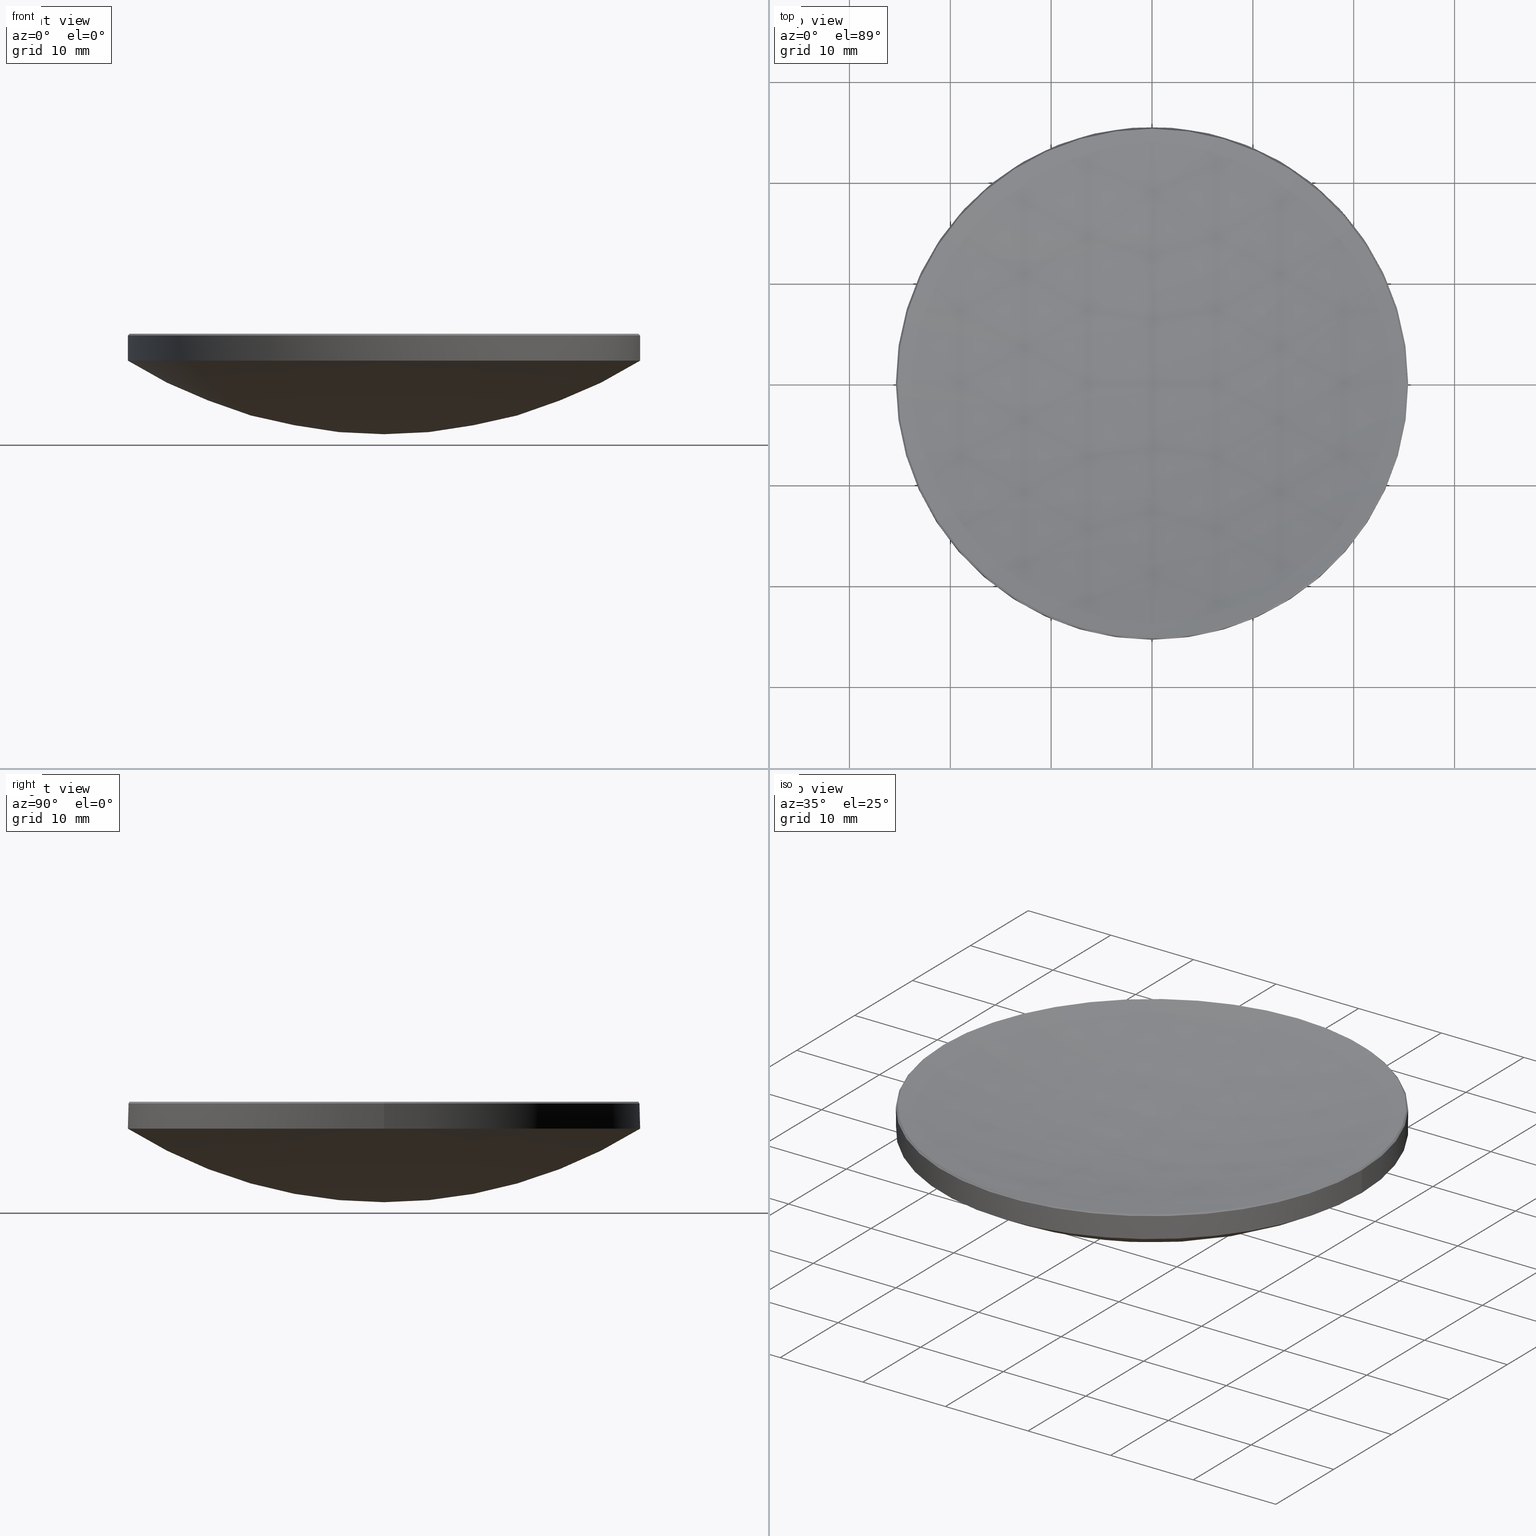
[diagram: canonical four-view strip — front | top / right | iso, engineering-drawing reading convention]
A machine part, canonical four-view strip (front | top / right | iso — engineering-drawing reading convention). The complete STEP part file that produces these views, byte-faithful:
ISO-10303-21;
HEADER;
FILE_DESCRIPTION (( 'STEP AP214' ),
    '1' );
FILE_NAME ('GLM1-050B-150.STEP',
    '2024-08-09T02:23:21',
    ( 'Windows User' ),
    ( 'P R C' ),
    'SwSTEP 2.0',
    'SolidWorks 2022',
    '' );
FILE_SCHEMA (( 'AUTOMOTIVE_DESIGN' ));
ENDSEC;

DATA;
#1 = PRODUCT_DEFINITION_SHAPE ( 'NONE', 'NONE',  #62 ) ;
#2 = CARTESIAN_POINT ( 'NONE',  ( 0.000000000000000000, 0.000000000000000000, 15.66432118436585164 ) ) ;
#3 = VECTOR ( 'NONE', #159, 1000.000000000000000 ) ;
#4 = EDGE_CURVE ( 'NONE', #138, #178, #260, .T. ) ;
#5 = CLOSED_SHELL ( 'NONE', ( #257, #67, #218, #91, #197, #127, #147, #262 ) ) ;
#6 = STYLED_ITEM ( 'NONE', ( #85 ), #89 ) ;
#7 = CARTESIAN_POINT ( 'NONE',  ( 0.000000000000000000, 0.000000000000000000, 132.2851722990535279 ) ) ;
#8 = SURFACE_STYLE_USAGE ( .BOTH. , #180 ) ;
#9 = EDGE_LOOP ( 'NONE', ( #49, #241, #60, #268, #126 ) ) ;
#10 = CIRCLE ( 'NONE', #173, 25.39999999999999503 ) ;
#11 = FILL_AREA_STYLE_COLOUR ( '', #199 ) ;
#12 = VERTEX_POINT ( 'NONE', #98 ) ;
#13 = SURFACE_STYLE_FILL_AREA ( #118 ) ;
#14 = ORIENTED_EDGE ( 'NONE', *, *, #175, .T. ) ;
#15 = DIRECTION ( 'NONE',  ( 1.000000000000000000, 0.000000000000000000, 0.000000000000000000 ) ) ;
#16 = LINE ( 'NONE', #64, #151 ) ;
#17 = ORIENTED_EDGE ( 'NONE', *, *, #276, .T. ) ;
#18 = DIRECTION ( 'NONE',  ( 0.000000000000000000, 0.000000000000000000, -1.000000000000000000 ) ) ;
#19 = VERTEX_POINT ( 'NONE', #184 ) ;
#20 = PRODUCT_DEFINITION_CONTEXT ( 'detailed design', #128, 'design' ) ;
#21 = CIRCLE ( 'NONE', #86, 47.86999999999999744 ) ;
#22 = CARTESIAN_POINT ( 'NONE',  ( 0.000000000000000000, 0.000000000000000000, 15.49999999999997158 ) ) ;
#23 = DIRECTION ( 'NONE',  ( -0.000000000000000000, -0.000000000000000000, 1.000000000000000000 ) ) ;
#24 = CIRCLE ( 'NONE', #111, 25.23567881563414517 ) ;
#25 = EDGE_CURVE ( 'NONE', #104, #279, #136, .T. ) ;
#26 =( LENGTH_UNIT ( ) NAMED_UNIT ( * ) SI_UNIT ( .MILLI., .METRE. ) );
#27 = ORIENTED_EDGE ( 'NONE', *, *, #155, .T. ) ;
#28 = CARTESIAN_POINT ( 'NONE',  ( -25.39999999999999858, 0.000000000000000000, 20.00000000000000000 ) ) ;
#29 = PRESENTATION_LAYER_ASSIGNMENT (  '', '', ( #280 ) ) ;
#30 = EDGE_CURVE ( 'NONE', #19, #12, #16, .T. ) ;
#31 = ORIENTED_EDGE ( 'NONE', *, *, #155, .F. ) ;
#32 = DIRECTION ( 'NONE',  ( 0.000000000000000000, 0.000000000000000000, -1.000000000000000000 ) ) ;
#33 = ORIENTED_EDGE ( 'NONE', *, *, #276, .F. ) ;
#34 = DIRECTION ( 'NONE',  ( -0.000000000000000000, -0.000000000000000000, -1.000000000000000000 ) ) ;
#35 = DIRECTION ( 'NONE',  ( -1.000000000000000000, 1.224646799147353207E-16, 0.000000000000000000 ) ) ;
#36 = CIRCLE ( 'NONE', #132, 25.39999999999999858 ) ;
#37 =( NAMED_UNIT ( * ) SI_UNIT ( $, .STERADIAN. ) SOLID_ANGLE_UNIT ( ) );
#38 = CARTESIAN_POINT ( 'NONE',  ( 0.000000000000000000, 0.000000000000000000, 13.00000000000000000 ) ) ;
#39 = DIRECTION ( 'NONE',  ( -0.000000000000000000, -0.000000000000000000, 1.000000000000000000 ) ) ;
#40 = FACE_OUTER_BOUND ( 'NONE', #116, .T. ) ;
#41 = PRODUCT_RELATED_PRODUCT_CATEGORY ( 'part', '', ( #44 ) ) ;
#42 = CARTESIAN_POINT ( 'NONE',  ( 0.000000000000000000, 0.000000000000000000, 132.2851722990535279 ) ) ;
#43 = CARTESIAN_POINT ( 'NONE',  ( 0.000000000000000000, 0.000000000000000000, 20.00000000000000000 ) ) ;
#44 = PRODUCT ( 'GLM1-050B-150', 'GLM1-050B-150', '', ( #239 ) ) ;
#45 = EDGE_CURVE ( 'NONE', #54, #104, #10, .T. ) ;
#46 = CIRCLE ( 'NONE', #179, 25.39999999999999503 ) ;
#47 = CARTESIAN_POINT ( 'NONE',  ( 0.000000000000000000, 0.000000000000000000, 0.000000000000000000 ) ) ;
#48 = EDGE_LOOP ( 'NONE', ( #217, #143, #119, #223, #31 ) ) ;
#49 = ORIENTED_EDGE ( 'NONE', *, *, #134, .T. ) ;
#50 = VERTEX_POINT ( 'NONE', #75 ) ;
#51 = EDGE_CURVE ( 'NONE', #247, #54, #21, .T. ) ;
#52 = CARTESIAN_POINT ( 'NONE',  ( 0.000000000000000000, 0.000000000000000000, 20.00000000000000000 ) ) ;
#53 = AXIS2_PLACEMENT_3D ( 'NONE', #7, #139, #56 ) ;
#54 = VERTEX_POINT ( 'NONE', #189 ) ;
#55 = DIRECTION ( 'NONE',  ( -1.224646799147353207E-16, -1.000000000000000000, 0.000000000000000000 ) ) ;
#56 = DIRECTION ( 'NONE',  ( 0.000000000000000000, 1.000000000000000000, 0.000000000000000000 ) ) ;
#57 = VERTEX_POINT ( 'NONE', #78 ) ;
#58 = DIRECTION ( 'NONE',  ( -1.000000000000000000, 0.000000000000000000, 0.000000000000000000 ) ) ;
#59 = CIRCLE ( 'NONE', #214, 25.23567881563414517 ) ;
#60 = ORIENTED_EDGE ( 'NONE', *, *, #106, .T. ) ;
#61 = DIRECTION ( 'NONE',  ( 0.000000000000000000, 1.000000000000000000, 0.000000000000000000 ) ) ;
#62 = PRODUCT_DEFINITION ( 'δ֪', '', #256, #20 ) ;
#63 = FACE_OUTER_BOUND ( 'NONE', #9, .T. ) ;
#64 = CARTESIAN_POINT ( 'NONE',  ( 25.39999999999999858, 3.110602869834276865E-15, 20.00000000000000000 ) ) ;
#65 = DIRECTION ( 'NONE',  ( 0.000000000000000000, 0.000000000000000000, 1.000000000000000000 ) ) ;
#66 = ORIENTED_EDGE ( 'NONE', *, *, #51, .F. ) ;
#67 = ADVANCED_FACE ( 'NONE', ( #165 ), #255, .T. ) ;
#68 = DIRECTION ( 'NONE',  ( 0.7071067811865177077, 8.659560562354566777E-17, -0.7071067811865773267 ) ) ;
#69 = DIRECTION ( 'NONE',  ( -0.000000000000000000, -0.000000000000000000, 1.000000000000000000 ) ) ;
#70 = ORIENTED_EDGE ( 'NONE', *, *, #101, .T. ) ;
#71 = CARTESIAN_POINT ( 'NONE',  ( 0.000000000000000000, 0.000000000000000000, 132.2851722990535279 ) ) ;
#72 = CARTESIAN_POINT ( 'NONE',  ( 0.000000000000000000, 0.000000000000000000, 15.66432118436585164 ) ) ;
#73 = DIRECTION ( 'NONE',  ( 1.000000000000000000, 0.000000000000000000, 0.000000000000000000 ) ) ;
#74 = DIRECTION ( 'NONE',  ( -0.000000000000000000, -0.000000000000000000, 1.000000000000000000 ) ) ;
#75 = CARTESIAN_POINT ( 'NONE',  ( 25.23567881563414872, 3.100541099210989890E-15, 15.66432118436585164 ) ) ;
#76 = AXIS2_PLACEMENT_3D ( 'NONE', #22, #18, #84 ) ;
#77 = AXIS2_PLACEMENT_3D ( 'NONE', #226, #39, #246 ) ;
#78 = CARTESIAN_POINT ( 'NONE',  ( 0.000000000000000000, 25.23567881563418425, 15.66432118436585164 ) ) ;
#79 = VERTEX_POINT ( 'NONE', #195 ) ;
#80 = AXIS2_PLACEMENT_3D ( 'NONE', #47, #65, #88 ) ;
#81 = EDGE_CURVE ( 'NONE', #247, #279, #237, .T. ) ;
#82 = DIRECTION ( 'NONE',  ( 0.000000000000000000, 0.000000000000000000, -1.000000000000000000 ) ) ;
#83 = VERTEX_POINT ( 'NONE', #235 ) ;
#84 = DIRECTION ( 'NONE',  ( 1.000000000000000000, 0.000000000000000000, 0.000000000000000000 ) ) ;
#85 = PRESENTATION_STYLE_ASSIGNMENT (( #215 ) ) ;
#86 = AXIS2_PLACEMENT_3D ( 'NONE', #278, #99, #82 ) ;
#87 = CONICAL_SURFACE ( 'NONE', #156, 25.23567881563414872, 0.7853981633974062015 ) ;
#88 = DIRECTION ( 'NONE',  ( 1.000000000000000000, 0.000000000000000000, 0.000000000000000000 ) ) ;
#89 = ADVANCED_BREP_SHAPE_REPRESENTATION ( 'GLM1-050B-150', ( #265, #80 ), #221 ) ;
#90 = VECTOR ( 'NONE', #174, 1000.000000000000114 ) ;
#91 = ADVANCED_FACE ( 'NONE', ( #63 ), #149, .T. ) ;
#92 = CARTESIAN_POINT ( 'NONE',  ( 0.000000000000000000, 2.931192113759189857E-15, 5.705570236288731500 ) ) ;
#93 = DIRECTION ( 'NONE',  ( 0.000000000000000000, 0.000000000000000000, -1.000000000000000000 ) ) ;
#94 = FACE_OUTER_BOUND ( 'NONE', #233, .T. ) ;
#95 = ORIENTED_EDGE ( 'NONE', *, *, #81, .T. ) ;
#96 =( NAMED_UNIT ( * ) SI_UNIT ( $, .STERADIAN. ) SOLID_ANGLE_UNIT ( ) );
#97 = DIRECTION ( 'NONE',  ( 1.000000000000000000, 0.000000000000000000, 0.000000000000000000 ) ) ;
#98 = CARTESIAN_POINT ( 'NONE',  ( 25.39999999999999503, 3.110602869834276471E-15, 13.00000000000000000 ) ) ;
#99 = DIRECTION ( 'NONE',  ( 1.000000000000000000, -0.000000000000000000, 0.000000000000000000 ) ) ;
#100 = SPHERICAL_SURFACE ( 'NONE', #201, 119.3200000000000074 ) ;
#101 = EDGE_CURVE ( 'NONE', #79, #178, #59, .T. ) ;
#102 = MECHANICAL_DESIGN_GEOMETRIC_PRESENTATION_REPRESENTATION (  '', ( #280 ), #177 ) ;
#103 = CARTESIAN_POINT ( 'NONE',  ( 0.000000000000000000, 7.306242803713110362E-15, 12.96517229905352941 ) ) ;
#104 = VERTEX_POINT ( 'NONE', #213 ) ;
#105 = AXIS2_PLACEMENT_3D ( 'NONE', #252, #230, #112 ) ;
#106 = EDGE_CURVE ( 'NONE', #12, #54, #46, .T. ) ;
#107 = AXIS2_PLACEMENT_3D ( 'NONE', #187, #74, #208 ) ;
#108 = SHAPE_DEFINITION_REPRESENTATION ( #1, #89 ) ;
#109 = ORIENTED_EDGE ( 'NONE', *, *, #51, .T. ) ;
#110 = ORIENTED_EDGE ( 'NONE', *, *, #234, .F. ) ;
#111 = AXIS2_PLACEMENT_3D ( 'NONE', #219, #161, #73 ) ;
#112 = DIRECTION ( 'NONE',  ( 1.000000000000000000, 0.000000000000000000, 0.000000000000000000 ) ) ;
#113 = AXIS2_PLACEMENT_3D ( 'NONE', #71, #15, #164 ) ;
#114 = MECHANICAL_DESIGN_GEOMETRIC_PRESENTATION_REPRESENTATION (  '', ( #6 ), #238 ) ;
#115 = CARTESIAN_POINT ( 'NONE',  ( 0.000000000000000000, 0.000000000000000000, 15.49999999999997158 ) ) ;
#116 = EDGE_LOOP ( 'NONE', ( #141, #17, #27, #70 ) ) ;
#117 = EDGE_CURVE ( 'NONE', #79, #83, #258, .T. ) ;
#118 = FILL_AREA_STYLE ('',( #11 ) ) ;
#119 = ORIENTED_EDGE ( 'NONE', *, *, #134, .F. ) ;
#120 = EDGE_LOOP ( 'NONE', ( #270, #171, #150, #192, #163 ) ) ;
#121 = CARTESIAN_POINT ( 'NONE',  ( -3.110602869834276865E-15, -25.39999999999999858, 12.99999999999999822 ) ) ;
#122 = DIRECTION ( 'NONE',  ( 1.000000000000000000, 0.000000000000000000, 0.000000000000000000 ) ) ;
#123 = FACE_OUTER_BOUND ( 'NONE', #48, .T. ) ;
#124 = EDGE_LOOP ( 'NONE', ( #160, #109, #205, #249 ) ) ;
#125 = DIRECTION ( 'NONE',  ( -0.000000000000000000, -0.000000000000000000, -1.000000000000000000 ) ) ;
#126 = ORIENTED_EDGE ( 'NONE', *, *, #176, .F. ) ;
#127 = ADVANCED_FACE ( 'NONE', ( #40 ), #100, .F. ) ;
#128 = APPLICATION_CONTEXT ( 'automotive_design' ) ;
#129 = DIRECTION ( 'NONE',  ( 0.000000000000000000, 1.000000000000000000, 0.000000000000000000 ) ) ;
#130 = CIRCLE ( 'NONE', #113, 119.3200000000000074 ) ;
#131 = DIRECTION ( 'NONE',  ( -0.000000000000000000, -0.000000000000000000, -1.000000000000000000 ) ) ;
#132 = AXIS2_PLACEMENT_3D ( 'NONE', #115, #93, #145 ) ;
#133 =( NAMED_UNIT ( * ) PLANE_ANGLE_UNIT ( ) SI_UNIT ( $, .RADIAN. ) );
#134 = EDGE_CURVE ( 'NONE', #83, #19, #158, .T. ) ;
#135 = APPLICATION_PROTOCOL_DEFINITION ( 'draft international standard', 'automotive_design', 1998, #128 ) ;
#136 = CIRCLE ( 'NONE', #107, 25.39999999999999503 ) ;
#137 = ORIENTED_EDGE ( 'NONE', *, *, #4, .T. ) ;
#138 = VERTEX_POINT ( 'NONE', #103 ) ;
#139 = DIRECTION ( 'NONE',  ( -1.000000000000000000, 0.000000000000000000, 0.000000000000000000 ) ) ;
#140 = AXIS2_PLACEMENT_3D ( 'NONE', #248, #206, #204 ) ;
#141 = ORIENTED_EDGE ( 'NONE', *, *, #4, .F. ) ;
#142 = SPHERICAL_SURFACE ( 'NONE', #53, 119.3200000000000074 ) ;
#143 = ORIENTED_EDGE ( 'NONE', *, *, #200, .T. ) ;
#144 = DIRECTION ( 'NONE',  ( 0.000000000000000000, 1.000000000000000000, 0.000000000000000000 ) ) ;
#145 = DIRECTION ( 'NONE',  ( 1.000000000000000000, 0.000000000000000000, 0.000000000000000000 ) ) ;
#146 = AXIS2_PLACEMENT_3D ( 'NONE', #43, #131, #282 ) ;
#147 = ADVANCED_FACE ( 'NONE', ( #185 ), #194, .T. ) ;
#148 = DIRECTION ( 'NONE',  ( 1.000000000000000000, 0.000000000000000000, 0.000000000000000000 ) ) ;
#149 = CYLINDRICAL_SURFACE ( 'NONE', #146, 25.39999999999999858 ) ;
#150 = ORIENTED_EDGE ( 'NONE', *, *, #176, .T. ) ;
#151 = VECTOR ( 'NONE', #125, 1000.000000000000000 ) ;
#152 = CARTESIAN_POINT ( 'NONE',  ( 0.000000000000000000, 0.000000000000000000, 13.00000000000000000 ) ) ;
#153 = APPLICATION_CONTEXT ( 'automotive_design' ) ;
#154 = AXIS2_PLACEMENT_3D ( 'NONE', #72, #69, #97 ) ;
#155 = EDGE_CURVE ( 'NONE', #57, #79, #277, .T. ) ;
#156 = AXIS2_PLACEMENT_3D ( 'NONE', #272, #32, #209 ) ;
#157 = APPLICATION_PROTOCOL_DEFINITION ( 'draft international standard', 'automotive_design', 1998, #153 ) ;
#158 = CIRCLE ( 'NONE', #76, 25.39999999999999858 ) ;
#159 = DIRECTION ( 'NONE',  ( -0.000000000000000000, -0.000000000000000000, -1.000000000000000000 ) ) ;
#160 = ORIENTED_EDGE ( 'NONE', *, *, #81, .F. ) ;
#161 = DIRECTION ( 'NONE',  ( -0.000000000000000000, -0.000000000000000000, 1.000000000000000000 ) ) ;
#162 = DIRECTION ( 'NONE',  ( -1.000000000000000000, 0.000000000000000000, 0.000000000000000000 ) ) ;
#163 = ORIENTED_EDGE ( 'NONE', *, *, #203, .T. ) ;
#164 = DIRECTION ( 'NONE',  ( 0.000000000000000000, 0.000000000000000000, -1.000000000000000000 ) ) ;
#165 = FACE_OUTER_BOUND ( 'NONE', #273, .T. ) ;
#166 = LINE ( 'NONE', #267, #196 ) ;
#167 = ORIENTED_EDGE ( 'NONE', *, *, #101, .F. ) ;
#168 = DIRECTION ( 'NONE',  ( -0.000000000000000000, -0.000000000000000000, 1.000000000000000000 ) ) ;
#169 = CIRCLE ( 'NONE', #105, 25.39999999999999503 ) ;
#170 = DIRECTION ( 'NONE',  ( -1.000000000000000000, 0.000000000000000000, 0.000000000000000000 ) ) ;
#171 = ORIENTED_EDGE ( 'NONE', *, *, #181, .T. ) ;
#172 = UNCERTAINTY_MEASURE_WITH_UNIT (LENGTH_MEASURE( 1.000000000000000082E-05 ), #222, 'distance_accuracy_value', 'NONE');
#173 = AXIS2_PLACEMENT_3D ( 'NONE', #152, #168, #122 ) ;
#174 = DIRECTION ( 'NONE',  ( -0.7071067811865177077, 0.000000000000000000, -0.7071067811865773267 ) ) ;
#175 = EDGE_CURVE ( 'NONE', #50, #57, #24, .T. ) ;
#176 = EDGE_CURVE ( 'NONE', #83, #104, #183, .T. ) ;
#177 =( GEOMETRIC_REPRESENTATION_CONTEXT ( 3 ) GLOBAL_UNCERTAINTY_ASSIGNED_CONTEXT ( ( #172 ) ) GLOBAL_UNIT_ASSIGNED_CONTEXT ( ( #222, #224, #96 ) ) REPRESENTATION_CONTEXT ( 'NONE', 'WORKASPACE' ) );
#178 = VERTEX_POINT ( 'NONE', #269 ) ;
#179 = AXIS2_PLACEMENT_3D ( 'NONE', #38, #23, #231 ) ;
#180 = SURFACE_SIDE_STYLE ('',( #13 ) ) ;
#181 = EDGE_CURVE ( 'NONE', #19, #83, #36, .T. ) ;
#182 = CYLINDRICAL_SURFACE ( 'NONE', #228, 25.39999999999999858 ) ;
#183 = LINE ( 'NONE', #28, #3 ) ;
#184 = CARTESIAN_POINT ( 'NONE',  ( 25.39999999999999858, 3.110602869834276865E-15, 15.49999999999997158 ) ) ;
#185 = FACE_OUTER_BOUND ( 'NONE', #124, .T. ) ;
#186 = FACE_OUTER_BOUND ( 'NONE', #120, .T. ) ;
#187 = CARTESIAN_POINT ( 'NONE',  ( 0.000000000000000000, 0.000000000000000000, 13.00000000000000000 ) ) ;
#188 =( LENGTH_UNIT ( ) NAMED_UNIT ( * ) SI_UNIT ( .MILLI., .METRE. ) );
#189 = CARTESIAN_POINT ( 'NONE',  ( 0.000000000000000000, 25.39999999999999858, 12.99999999999999822 ) ) ;
#190 = AXIS2_PLACEMENT_3D ( 'NONE', #275, #170, #61 ) ;
#191 = CARTESIAN_POINT ( 'NONE',  ( -25.23567881563414872, 0.000000000000000000, 15.66432118436583742 ) ) ;
#192 = ORIENTED_EDGE ( 'NONE', *, *, #25, .T. ) ;
#193 = UNCERTAINTY_MEASURE_WITH_UNIT (LENGTH_MEASURE( 1.000000000000000082E-05 ), #26, 'distance_accuracy_value', 'NONE');
#194 = SPHERICAL_SURFACE ( 'NONE', #254, 47.86999999999999744 ) ;
#195 = CARTESIAN_POINT ( 'NONE',  ( -25.23567881563414872, 0.000000000000000000, 15.66432118436585164 ) ) ;
#196 = VECTOR ( 'NONE', #68, 1000.000000000000114 ) ;
#197 = ADVANCED_FACE ( 'NONE', ( #186 ), #182, .T. ) ;
#198 = AXIS2_PLACEMENT_3D ( 'NONE', #227, #35, #55 ) ;
#199 = COLOUR_RGB ( '',1.000000000000000000, 1.000000000000000000, 1.000000000000000000 ) ;
#200 = EDGE_CURVE ( 'NONE', #50, #19, #166, .T. ) ;
#201 = AXIS2_PLACEMENT_3D ( 'NONE', #42, #211, #129 ) ;
#202 = SURFACE_STYLE_FILL_AREA ( #250 ) ;
#203 = EDGE_CURVE ( 'NONE', #279, #12, #169, .T. ) ;
#204 = DIRECTION ( 'NONE',  ( -1.000000000000000000, 0.000000000000000000, 0.000000000000000000 ) ) ;
#205 = ORIENTED_EDGE ( 'NONE', *, *, #106, .F. ) ;
#206 = DIRECTION ( 'NONE',  ( 0.000000000000000000, 0.000000000000000000, -1.000000000000000000 ) ) ;
#207 = ORIENTED_EDGE ( 'NONE', *, *, #25, .F. ) ;
#208 = DIRECTION ( 'NONE',  ( 1.000000000000000000, 0.000000000000000000, 0.000000000000000000 ) ) ;
#209 = DIRECTION ( 'NONE',  ( -1.000000000000000000, 0.000000000000000000, 0.000000000000000000 ) ) ;
#210 = DIRECTION ( 'NONE',  ( -1.000000000000000000, 1.224646799147353207E-16, 0.000000000000000000 ) ) ;
#211 = DIRECTION ( 'NONE',  ( -1.000000000000000000, 0.000000000000000000, 0.000000000000000000 ) ) ;
#212 = CIRCLE ( 'NONE', #77, 25.23567881563414517 ) ;
#213 = CARTESIAN_POINT ( 'NONE',  ( -25.39999999999999503, 0.000000000000000000, 13.00000000000000000 ) ) ;
#214 = AXIS2_PLACEMENT_3D ( 'NONE', #2, #232, #148 ) ;
#215 = SURFACE_STYLE_USAGE ( .BOTH. , #240 ) ;
#216 = EDGE_LOOP ( 'NONE', ( #245, #110, #167, #253, #220 ) ) ;
#217 = ORIENTED_EDGE ( 'NONE', *, *, #175, .F. ) ;
#218 = ADVANCED_FACE ( 'NONE', ( #94 ), #142, .F. ) ;
#219 = CARTESIAN_POINT ( 'NONE',  ( 0.000000000000000000, 0.000000000000000000, 15.66432118436585164 ) ) ;
#220 = ORIENTED_EDGE ( 'NONE', *, *, #181, .F. ) ;
#221 =( GEOMETRIC_REPRESENTATION_CONTEXT ( 3 ) GLOBAL_UNCERTAINTY_ASSIGNED_CONTEXT ( ( #242 ) ) GLOBAL_UNIT_ASSIGNED_CONTEXT ( ( #188, #274, #37 ) ) REPRESENTATION_CONTEXT ( 'NONE', 'WORKASPACE' ) );
#222 =( LENGTH_UNIT ( ) NAMED_UNIT ( * ) SI_UNIT ( .MILLI., .METRE. ) );
#223 = ORIENTED_EDGE ( 'NONE', *, *, #117, .F. ) ;
#224 =( NAMED_UNIT ( * ) PLANE_ANGLE_UNIT ( ) SI_UNIT ( $, .RADIAN. ) );
#225 = ORIENTED_EDGE ( 'NONE', *, *, #234, .T. ) ;
#226 = CARTESIAN_POINT ( 'NONE',  ( 0.000000000000000000, 0.000000000000000000, 15.66432118436585164 ) ) ;
#227 = CARTESIAN_POINT ( 'NONE',  ( 0.000000000000000000, 0.000000000000000000, 132.2851722990535279 ) ) ;
#228 = AXIS2_PLACEMENT_3D ( 'NONE', #52, #34, #162 ) ;
#229 = CARTESIAN_POINT ( 'NONE',  ( 0.000000000000000000, 0.000000000000000000, 53.57557023628872628 ) ) ;
#230 = DIRECTION ( 'NONE',  ( -0.000000000000000000, -0.000000000000000000, 1.000000000000000000 ) ) ;
#231 = DIRECTION ( 'NONE',  ( 1.000000000000000000, 0.000000000000000000, 0.000000000000000000 ) ) ;
#232 = DIRECTION ( 'NONE',  ( -0.000000000000000000, -0.000000000000000000, 1.000000000000000000 ) ) ;
#233 = EDGE_LOOP ( 'NONE', ( #33, #137, #225, #14 ) ) ;
#234 = EDGE_CURVE ( 'NONE', #178, #50, #212, .T. ) ;
#235 = CARTESIAN_POINT ( 'NONE',  ( -25.39999999999999858, 0.000000000000000000, 15.49999999999997158 ) ) ;
#236 = COLOUR_RGB ( '',1.000000000000000000, 1.000000000000000000, 1.000000000000000000 ) ;
#237 = CIRCLE ( 'NONE', #264, 47.86999999999999744 ) ;
#238 =( GEOMETRIC_REPRESENTATION_CONTEXT ( 3 ) GLOBAL_UNCERTAINTY_ASSIGNED_CONTEXT ( ( #193 ) ) GLOBAL_UNIT_ASSIGNED_CONTEXT ( ( #26, #133, #263 ) ) REPRESENTATION_CONTEXT ( 'NONE', 'WORKASPACE' ) );
#239 = PRODUCT_CONTEXT ( 'NONE', #153, 'mechanical' ) ;
#240 = SURFACE_SIDE_STYLE ('',( #202 ) ) ;
#241 = ORIENTED_EDGE ( 'NONE', *, *, #30, .T. ) ;
#242 = UNCERTAINTY_MEASURE_WITH_UNIT (LENGTH_MEASURE( 1.000000000000000082E-05 ), #188, 'distance_accuracy_value', 'NONE');
#243 = FACE_OUTER_BOUND ( 'NONE', #216, .T. ) ;
#244 = ORIENTED_EDGE ( 'NONE', *, *, #45, .F. ) ;
#245 = ORIENTED_EDGE ( 'NONE', *, *, #200, .F. ) ;
#246 = DIRECTION ( 'NONE',  ( 1.000000000000000000, 0.000000000000000000, 0.000000000000000000 ) ) ;
#247 = VERTEX_POINT ( 'NONE', #92 ) ;
#248 = CARTESIAN_POINT ( 'NONE',  ( 0.000000000000000000, 0.000000000000000000, 15.66432118436583742 ) ) ;
#249 = ORIENTED_EDGE ( 'NONE', *, *, #203, .F. ) ;
#250 = FILL_AREA_STYLE ('',( #271 ) ) ;
#251 = CARTESIAN_POINT ( 'NONE',  ( 0.000000000000000000, 0.000000000000000000, 53.57557023628872628 ) ) ;
#252 = CARTESIAN_POINT ( 'NONE',  ( 0.000000000000000000, 0.000000000000000000, 13.00000000000000000 ) ) ;
#253 = ORIENTED_EDGE ( 'NONE', *, *, #117, .T. ) ;
#254 = AXIS2_PLACEMENT_3D ( 'NONE', #251, #58, #144 ) ;
#255 = SPHERICAL_SURFACE ( 'NONE', #190, 47.86999999999999744 ) ;
#256 = PRODUCT_DEFINITION_FORMATION_WITH_SPECIFIED_SOURCE ( '�κ�', '', #44, .NOT_KNOWN. ) ;
#257 = ADVANCED_FACE ( 'NONE', ( #123 ), #87, .T. ) ;
#258 = LINE ( 'NONE', #191, #90 ) ;
#259 = DIRECTION ( 'NONE',  ( -1.224646799147353207E-16, -1.000000000000000000, 0.000000000000000000 ) ) ;
#260 = CIRCLE ( 'NONE', #198, 119.3200000000000074 ) ;
#261 = CONICAL_SURFACE ( 'NONE', #140, 25.23567881563414872, 0.7853981633974062015 ) ;
#262 = ADVANCED_FACE ( 'NONE', ( #243 ), #261, .T. ) ;
#263 =( NAMED_UNIT ( * ) SI_UNIT ( $, .STERADIAN. ) SOLID_ANGLE_UNIT ( ) );
#264 = AXIS2_PLACEMENT_3D ( 'NONE', #229, #210, #259 ) ;
#265 = MANIFOLD_SOLID_BREP ( '����1', #5 ) ;
#266 = PRESENTATION_STYLE_ASSIGNMENT (( #8 ) ) ;
#267 = CARTESIAN_POINT ( 'NONE',  ( 25.23567881563414872, 3.090479328587702520E-15, 15.66432118436583742 ) ) ;
#268 = ORIENTED_EDGE ( 'NONE', *, *, #45, .T. ) ;
#269 = CARTESIAN_POINT ( 'NONE',  ( -3.090479328587706859E-15, -25.23567881563418425, 15.66432118436585164 ) ) ;
#270 = ORIENTED_EDGE ( 'NONE', *, *, #30, .F. ) ;
#271 = FILL_AREA_STYLE_COLOUR ( '', #236 ) ;
#272 = CARTESIAN_POINT ( 'NONE',  ( 0.000000000000000000, 0.000000000000000000, 15.66432118436583742 ) ) ;
#273 = EDGE_LOOP ( 'NONE', ( #66, #95, #207, #244 ) ) ;
#274 =( NAMED_UNIT ( * ) PLANE_ANGLE_UNIT ( ) SI_UNIT ( $, .RADIAN. ) );
#275 = CARTESIAN_POINT ( 'NONE',  ( 0.000000000000000000, 0.000000000000000000, 53.57557023628872628 ) ) ;
#276 = EDGE_CURVE ( 'NONE', #138, #57, #130, .T. ) ;
#277 = CIRCLE ( 'NONE', #154, 25.23567881563414517 ) ;
#278 = CARTESIAN_POINT ( 'NONE',  ( 0.000000000000000000, 0.000000000000000000, 53.57557023628872628 ) ) ;
#279 = VERTEX_POINT ( 'NONE', #121 ) ;
#280 = STYLED_ITEM ( 'NONE', ( #266 ), #265 ) ;
#281 = PRESENTATION_LAYER_ASSIGNMENT (  '', '', ( #6 ) ) ;
#282 = DIRECTION ( 'NONE',  ( -1.000000000000000000, 0.000000000000000000, 0.000000000000000000 ) ) ;
ENDSEC;
END-ISO-10303-21;
